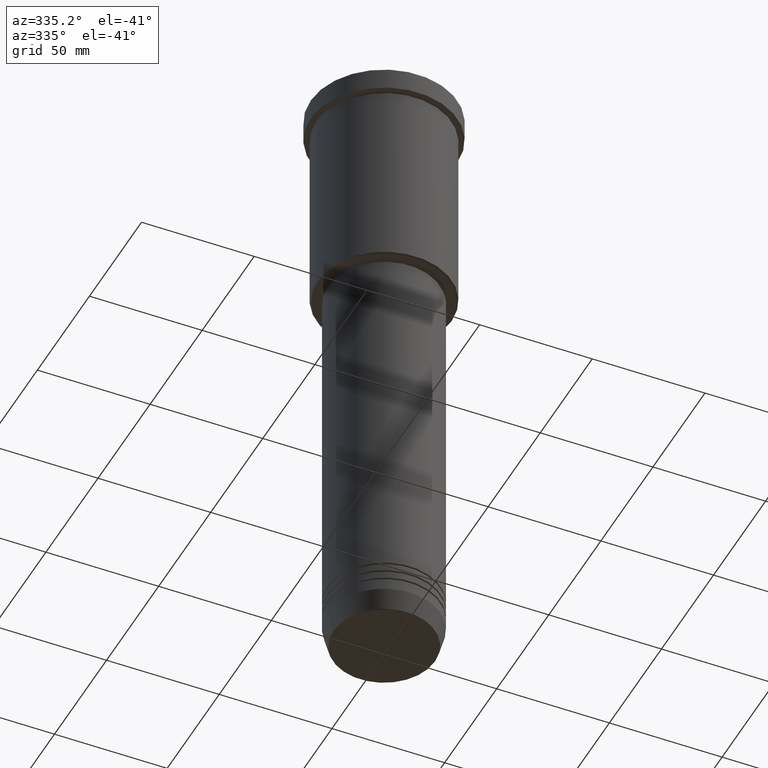
[diagram: clean part render]
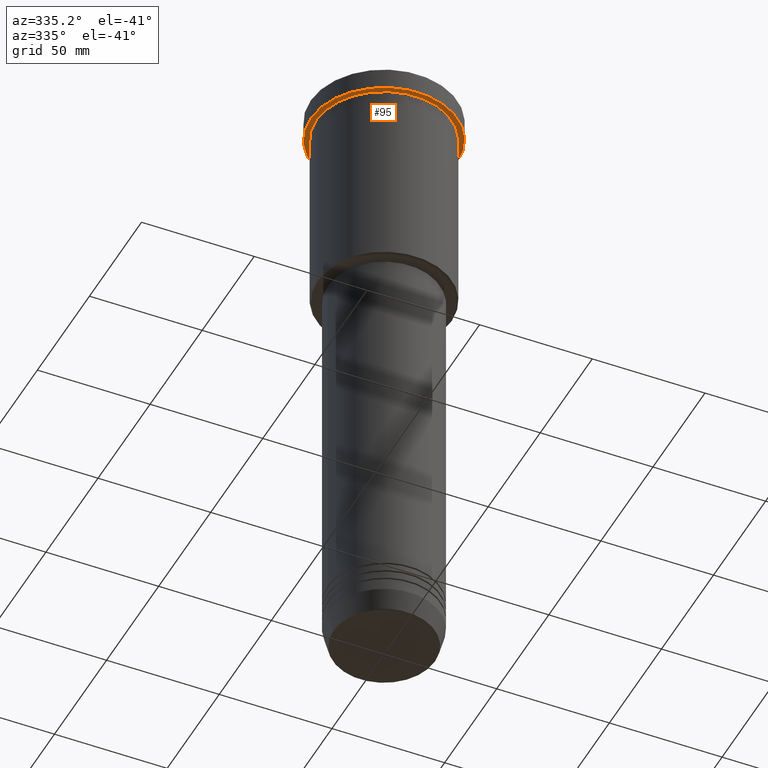
[diagram: same view with one face highlighted and labeled with its STEP entity id]
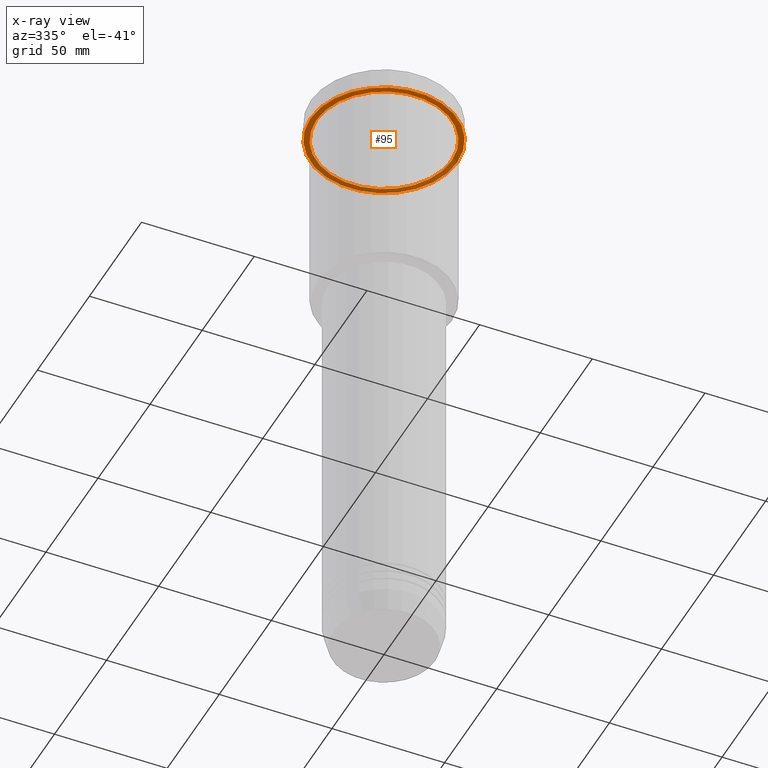
[diagram: x-ray of the same camera — body ghosted, the highlighted face saturated]
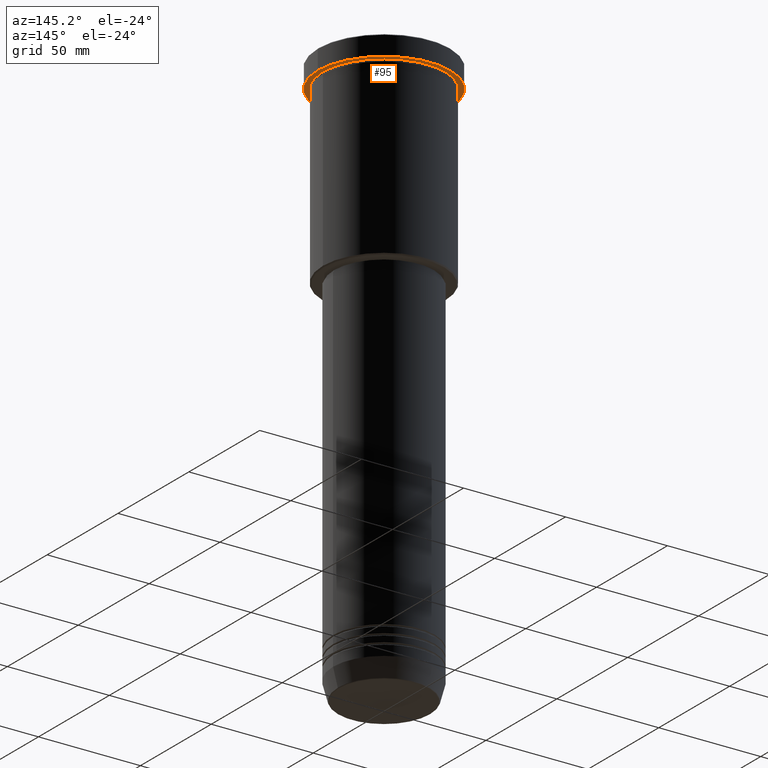
[diagram: same view with one face highlighted and labeled with its STEP entity id]
A machine part, auxiliary view. The second image highlights one B-rep face of the part: STEP entity #95.
The next image is the same camera in x-ray: the body ghosted, the highlighted face saturated — about 37% of this face is hidden behind the body in this view.
A second angle (auxiliary view) of the same face is appended — the face is thin or edge-on in the first view.
In plain terms, the highlighted planar face has unit normal (0, 0, -1).
Its self-contained STEP definition (entity closure, byte-faithful):
#25 = CARTESIAN_POINT ( 'NONE',  ( 0.000000000000000000, 0.000000000000000000, -9.999999999999992895 ) ) ;
#51 = EDGE_CURVE ( 'NONE', #968, #626, #1101, .T. ) ;
#69 = AXIS2_PLACEMENT_3D ( 'NONE', #25, #760, #383 ) ;
#95 = ADVANCED_FACE ( 'NONE', ( #441, #362 ), #535, .T. ) ;
#133 = CARTESIAN_POINT ( 'NONE',  ( -32.50000000000000000, 3.980102097228898626E-15, -9.999999999999992895 ) ) ;
#146 = EDGE_LOOP ( 'NONE', ( #547, #1085 ) ) ;
#151 = DIRECTION ( 'NONE',  ( -0.000000000000000000, -0.000000000000000000, 1.000000000000000000 ) ) ;
#179 = AXIS2_PLACEMENT_3D ( 'NONE', #742, #151, #807 ) ;
#199 = AXIS2_PLACEMENT_3D ( 'NONE', #827, #921, #638 ) ;
#234 = EDGE_CURVE ( 'NONE', #236, #1022, #312, .T. ) ;
#236 = VERTEX_POINT ( 'NONE', #1163 ) ;
#264 = EDGE_CURVE ( 'NONE', #1022, #236, #837, .T. ) ;
#271 = CARTESIAN_POINT ( 'NONE',  ( 0.000000000000000000, 0.000000000000000000, -9.999999999999992895 ) ) ;
#301 = EDGE_LOOP ( 'NONE', ( #595, #863 ) ) ;
#312 = CIRCLE ( 'NONE', #179, 32.50000000000000000 ) ;
#314 = CIRCLE ( 'NONE', #354, 30.00000000000000000 ) ;
#354 = AXIS2_PLACEMENT_3D ( 'NONE', #271, #769, #1125 ) ;
#362 = FACE_OUTER_BOUND ( 'NONE', #146, .T. ) ;
#383 = DIRECTION ( 'NONE',  ( 1.000000000000000000, 0.000000000000000000, 0.000000000000000000 ) ) ;
#441 = FACE_BOUND ( 'NONE', #301, .T. ) ;
#466 = CARTESIAN_POINT ( 'NONE',  ( 0.000000000000000000, 0.000000000000000000, -9.999999999999992895 ) ) ;
#475 = DIRECTION ( 'NONE',  ( -0.000000000000000000, -0.000000000000000000, 1.000000000000000000 ) ) ;
#507 = EDGE_CURVE ( 'NONE', #626, #968, #314, .T. ) ;
#535 = PLANE ( 'NONE',  #199 ) ;
#547 = ORIENTED_EDGE ( 'NONE', *, *, #234, .F. ) ;
#595 = ORIENTED_EDGE ( 'NONE', *, *, #507, .T. ) ;
#626 = VERTEX_POINT ( 'NONE', #1037 ) ;
#638 = DIRECTION ( 'NONE',  ( -1.000000000000000000, 0.000000000000000000, -0.000000000000000000 ) ) ;
#742 = CARTESIAN_POINT ( 'NONE',  ( 0.000000000000000000, 0.000000000000000000, -9.999999999999992895 ) ) ;
#760 = DIRECTION ( 'NONE',  ( -0.000000000000000000, -0.000000000000000000, 1.000000000000000000 ) ) ;
#769 = DIRECTION ( 'NONE',  ( -0.000000000000000000, -0.000000000000000000, 1.000000000000000000 ) ) ;
#807 = DIRECTION ( 'NONE',  ( 1.000000000000000000, 0.000000000000000000, 0.000000000000000000 ) ) ;
#827 = CARTESIAN_POINT ( 'NONE',  ( 0.000000000000000000, 32.50000000000000000, -9.999999999999992895 ) ) ;
#837 = CIRCLE ( 'NONE', #69, 32.50000000000000000 ) ;
#842 = DIRECTION ( 'NONE',  ( -1.000000000000000000, 0.000000000000000000, 0.000000000000000000 ) ) ;
#863 = ORIENTED_EDGE ( 'NONE', *, *, #51, .T. ) ;
#886 = CARTESIAN_POINT ( 'NONE',  ( 30.00000000000000000, 3.673940397442059178E-15, -9.999999999999992895 ) ) ;
#921 = DIRECTION ( 'NONE',  ( 0.000000000000000000, 0.000000000000000000, -1.000000000000000000 ) ) ;
#968 = VERTEX_POINT ( 'NONE', #886 ) ;
#1022 = VERTEX_POINT ( 'NONE', #133 ) ;
#1037 = CARTESIAN_POINT ( 'NONE',  ( -30.00000000000000000, 0.000000000000000000, -9.999999999999992895 ) ) ;
#1085 = ORIENTED_EDGE ( 'NONE', *, *, #264, .F. ) ;
#1101 = CIRCLE ( 'NONE', #1156, 30.00000000000000000 ) ;
#1125 = DIRECTION ( 'NONE',  ( -1.000000000000000000, 0.000000000000000000, 0.000000000000000000 ) ) ;
#1156 = AXIS2_PLACEMENT_3D ( 'NONE', #466, #475, #842 ) ;
#1163 = CARTESIAN_POINT ( 'NONE',  ( 32.50000000000000000, 0.000000000000000000, -9.999999999999992895 ) ) ;